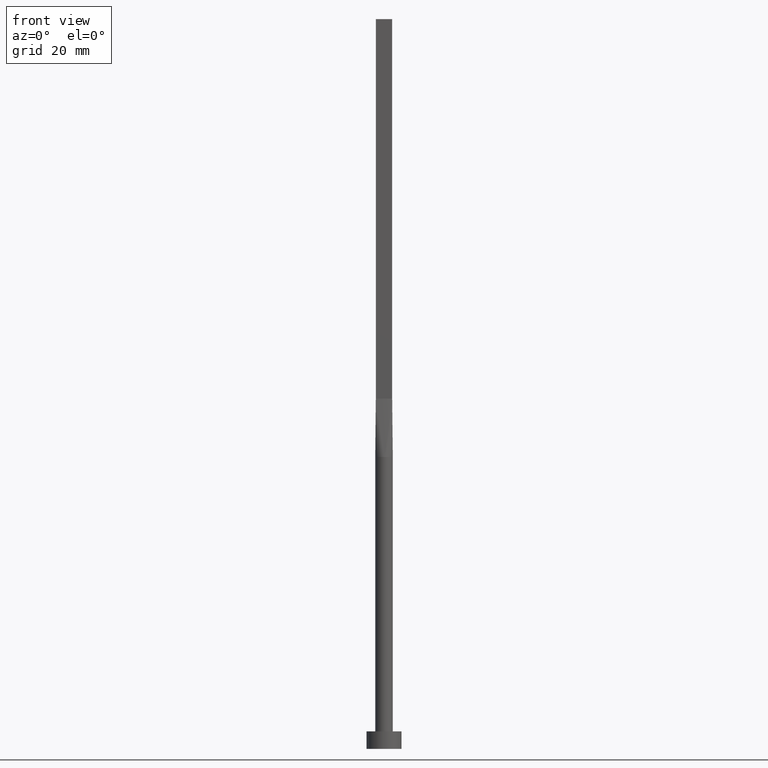
[diagram: clean part render]
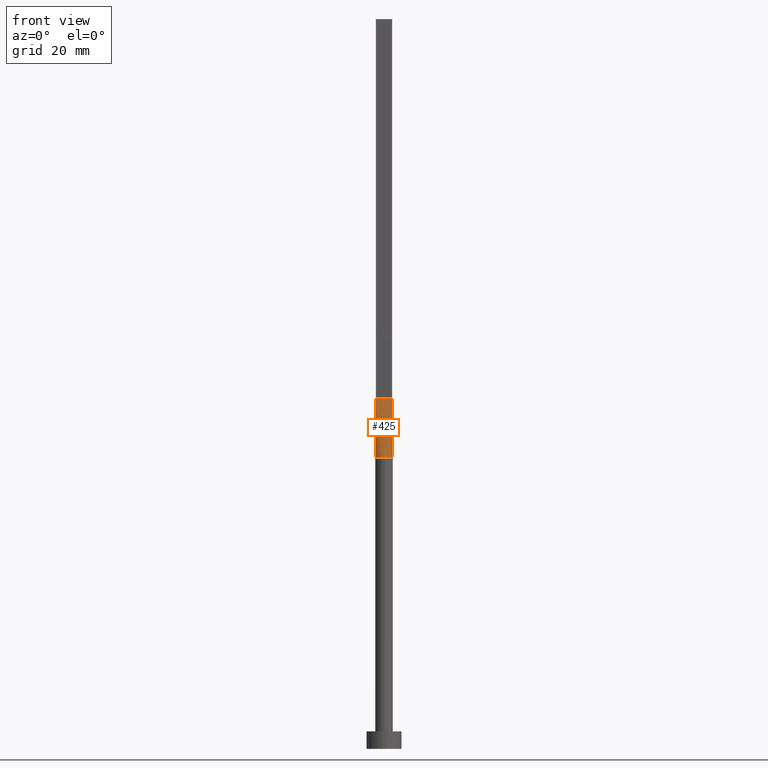
[diagram: same view with one face highlighted and labeled with its STEP entity id]
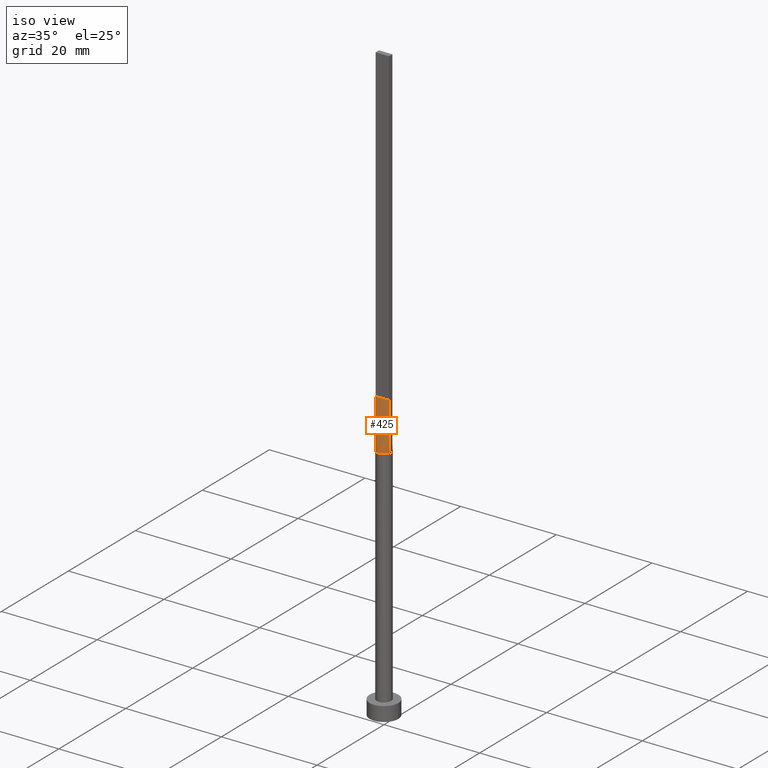
[diagram: same view with one face highlighted and labeled with its STEP entity id]
A machine part, front view. The second image highlights one B-rep face of the part: STEP entity #425.
A second angle (iso view) of the same face is appended — the face is thin or edge-on in the first view.
In plain terms, the highlighted face is a freeform B-spline surface patch.
Its self-contained STEP definition (entity closure, byte-faithful):
#12 = VECTOR ( 'NONE', #84, 1000.000000000000114 ) ;
#22 = DIRECTION ( 'NONE',  ( 0.000000000000000000, 0.000000000000000000, 1.000000000000000000 ) ) ;
#30 = DIRECTION ( 'NONE',  ( -0.001261285608005553900, -0.0004504591457162553103, -0.9999991031221843185 ) ) ;
#34 = CARTESIAN_POINT ( 'NONE',  ( 0.1166666666666654889, -0.4999999999999995559, 60.00000000000000000 ) ) ;
#36 = CARTESIAN_POINT ( 'NONE',  ( -1.316960349798174557, -0.7311494208568978248, 50.00000000000002842 ) ) ;
#39 = CARTESIAN_POINT ( 'NONE',  ( 1.373020107211260665, -0.6153643240040224116, 50.00000000000000711 ) ) ;
#54 = EDGE_LOOP ( 'NONE', ( #533, #512, #225, #340 ) ) ;
#76 = CARTESIAN_POINT ( 'NONE',  ( -0.3520402531411755964, -1.468082505288407447, 49.99999999999999289 ) ) ;
#77 = CARTESIAN_POINT ( 'NONE',  ( -1.283333333333333437, -0.4999999999999995559, 60.00000000000000711 ) ) ;
#81 = CARTESIAN_POINT ( 'NONE',  ( -1.399999999999999911, -0.4999999999999995559, 60.00000000000000711 ) ) ;
#84 = DIRECTION ( 'NONE',  ( -0.001261285608005532216, 0.0004504591457163203624, 0.9999991031221843185 ) ) ;
#102 = VECTOR ( 'NONE', #440, 1000.000000000000000 ) ;
#128 = CARTESIAN_POINT ( 'NONE',  ( 0.8166666666666658747, -0.4999999999999997780, 60.00000000000000000 ) ) ;
#132 = CARTESIAN_POINT ( 'NONE',  ( -1.412629890847167724, -0.5045107419440655327, 50.00000000000000000 ) ) ;
#148 = CARTESIAN_POINT ( 'NONE',  ( 1.399999999999999911, -0.4999999999999997780, 60.00000000000000711 ) ) ;
#160 = AXIS2_PLACEMENT_3D ( 'NONE', #242, #22, #180 ) ;
#168 = CARTESIAN_POINT ( 'NONE',  ( 1.316960349798174335, -0.7311494208568987130, 50.00000000000003553 ) ) ;
#170 = CARTESIAN_POINT ( 'NONE',  ( 0.1761797990592584850, -1.499999999999999556, 50.00000000000000711 ) ) ;
#174 = CARTESIAN_POINT ( 'NONE',  ( 1.283333333333332993, -0.4999999999999997780, 60.00000000000000000 ) ) ;
#180 = DIRECTION ( 'NONE',  ( 1.000000000000000000, 0.000000000000000000, 0.000000000000000000 ) ) ;
#187 = CIRCLE ( 'NONE', #160, 1.500000000000000222 ) ;
#197 = VERTEX_POINT ( 'NONE', #148 ) ;
#202 = VERTEX_POINT ( 'NONE', #132 ) ;
#212 = CARTESIAN_POINT ( 'NONE',  ( 0.4666666666666655638, -0.4999999999999995559, 60.00000000000000000 ) ) ;
#217 = CARTESIAN_POINT ( 'NONE',  ( -0.8182264876570952694, -1.266912425724809665, 50.00000000000000711 ) ) ;
#218 = CARTESIAN_POINT ( 'NONE',  ( -0.4666666666666677288, -0.4999999999999995559, 60.00000000000000000 ) ) ;
#225 = ORIENTED_EDGE ( 'NONE', *, *, #442, .F. ) ;
#227 = EDGE_CURVE ( 'NONE', #202, #522, #187, .T. ) ;
#242 = CARTESIAN_POINT ( 'NONE',  ( 0.000000000000000000, 0.000000000000000000, 50.00000000000000000 ) ) ;
#245 = CARTESIAN_POINT ( 'NONE',  ( -1.406306433696128178, -0.5022522977486166829, 55.00000000000000711 ) ) ;
#249 = LINE ( 'NONE', #245, #484 ) ;
#257 = CARTESIAN_POINT ( 'NONE',  ( -0.1761797990592596230, -1.500000000000000000, 50.00000000000000000 ) ) ;
#259 = CARTESIAN_POINT ( 'NONE',  ( -1.412612867392256444, -0.5045045954972339208, 50.00000000000000000 ) ) ;
#275 = CARTESIAN_POINT ( 'NONE',  ( 1.406306433696127955, -0.5022522977486173490, 55.00000000000000711 ) ) ;
#298 = VERTEX_POINT ( 'NONE', #375 ) ;
#304 = CARTESIAN_POINT ( 'NONE',  ( 1.412612867392256222, -0.5045045954972348090, 50.00000000000000000 ) ) ;
#307 = CARTESIAN_POINT ( 'NONE',  ( 0.9333333333333325710, -0.4999999999999997780, 60.00000000000000000 ) ) ;
#311 = LINE ( 'NONE', #81, #102 ) ;
#340 = ORIENTED_EDGE ( 'NONE', *, *, #368, .T. ) ;
#348 = CARTESIAN_POINT ( 'NONE',  ( 1.399999999999999911, -0.4999999999999997780, 60.00000000000000711 ) ) ;
#350 = CARTESIAN_POINT ( 'NONE',  ( -1.161819288130434114, -0.9587178835757669271, 50.00000000000000711 ) ) ;
#352 = CARTESIAN_POINT ( 'NONE',  ( -0.9333333333333340143, -0.4999999999999995559, 60.00000000000000000 ) ) ;
#354 = CARTESIAN_POINT ( 'NONE',  ( 0.2333333333333321713, -0.4999999999999995559, 60.00000000000000000 ) ) ;
#368 = EDGE_CURVE ( 'NONE', #298, #202, #249, .T. ) ;
#375 = CARTESIAN_POINT ( 'NONE',  ( -1.399999999999999911, -0.4999999999999995559, 60.00000000000000711 ) ) ;
#388 = CARTESIAN_POINT ( 'NONE',  ( -0.2333333333333345028, -0.4999999999999995559, 60.00000000000000000 ) ) ;
#391 = CARTESIAN_POINT ( 'NONE',  ( 1.161819288130433669, -0.9587178835757682593, 50.00000000000002842 ) ) ;
#393 = CARTESIAN_POINT ( 'NONE',  ( -1.373020107211261109, -0.6153643240040214124, 50.00000000000000000 ) ) ;
#396 = CARTESIAN_POINT ( 'NONE',  ( 0.6732153042498572049, -1.351288176626052939, 49.99999999999999289 ) ) ;
#398 = CARTESIAN_POINT ( 'NONE',  ( 1.412648369950143756, -0.5045174509283282260, 50.00000000000000000 ) ) ;
#411 = LINE ( 'NONE', #275, #12 ) ;
#425 = ADVANCED_FACE ( 'NONE', ( #476 ), #496, .T. ) ;
#432 = CARTESIAN_POINT ( 'NONE',  ( -0.1166666666666678620, -0.4999999999999995559, 60.00000000000000000 ) ) ;
#434 = CARTESIAN_POINT ( 'NONE',  ( -1.399999999999999911, -0.4999999999999995559, 60.00000000000000711 ) ) ;
#437 = CARTESIAN_POINT ( 'NONE',  ( 0.8182264876570946033, -1.266912425724810998, 50.00000000000000000 ) ) ;
#440 = DIRECTION ( 'NONE',  ( 1.000000000000000000, -7.744301232039317914E-17, 0.000000000000000000 ) ) ;
#442 = EDGE_CURVE ( 'NONE', #298, #197, #311, .T. ) ;
#466 = EDGE_CURVE ( 'NONE', #522, #197, #411, .T. ) ;
#476 = FACE_OUTER_BOUND ( 'NONE', #54, .T. ) ;
#482 = CARTESIAN_POINT ( 'NONE',  ( -0.6732153042498583151, -1.351288176626052051, 50.00000000000000711 ) ) ;
#483 = CARTESIAN_POINT ( 'NONE',  ( -1.062433464748102852, -1.070418989248103081, 49.99999999999999289 ) ) ;
#484 = VECTOR ( 'NONE', #30, 1000.000000000000114 ) ;
#486 = CARTESIAN_POINT ( 'NONE',  ( -1.166666666666666963, -0.4999999999999995559, 60.00000000000000711 ) ) ;
#496 = B_SPLINE_SURFACE_WITH_KNOTS ( 'NONE', 3, 1, ( 
 ( #259, #434 ),
 ( #393, #77 ),
 ( #36, #486 ),
 ( #350, #352 ),
 ( #483, #576 ),
 ( #217, #530 ),
 ( #482, #218 ),
 ( #76, #388 ),
 ( #257, #432 ),
 ( #170, #34 ),
 ( #531, #354 ),
 ( #396, #212 ),
 ( #437, #581 ),
 ( #535, #128 ),
 ( #391, #307 ),
 ( #168, #578 ),
 ( #39, #174 ),
 ( #304, #348 ) ),
 .UNSPECIFIED., .F., .F., .F.,
 ( 4, 2, 2, 2, 2, 2, 2, 2, 4 ),
 ( 2, 2 ),
 ( 0.000000000000000000, 0.1250000000000000000, 0.2500000000000000000, 0.3750000000000000000, 0.5000000000000000000, 0.6250000000000000000, 0.7500000000000000000, 0.8750000000000000000, 1.000000000000000000 ),
 ( 0.000000000000000000, 1.000000000000000000 ),
 .UNSPECIFIED. ) ;
#512 = ORIENTED_EDGE ( 'NONE', *, *, #466, .T. ) ;
#522 = VERTEX_POINT ( 'NONE', #398 ) ;
#530 = CARTESIAN_POINT ( 'NONE',  ( -0.5833333333333343695, -0.4999999999999995559, 60.00000000000000000 ) ) ;
#531 = CARTESIAN_POINT ( 'NONE',  ( 0.3520402531411743752, -1.468082505288408113, 50.00000000000000711 ) ) ;
#533 = ORIENTED_EDGE ( 'NONE', *, *, #227, .T. ) ;
#535 = CARTESIAN_POINT ( 'NONE',  ( 1.062433464748102629, -1.070418989248103747, 49.99999999999998579 ) ) ;
#576 = CARTESIAN_POINT ( 'NONE',  ( -0.8166666666666674290, -0.4999999999999995559, 60.00000000000000000 ) ) ;
#578 = CARTESIAN_POINT ( 'NONE',  ( 1.166666666666666075, -0.4999999999999997780, 60.00000000000000000 ) ) ;
#581 = CARTESIAN_POINT ( 'NONE',  ( 0.5833333333333323711, -0.4999999999999996669, 60.00000000000000000 ) ) ;